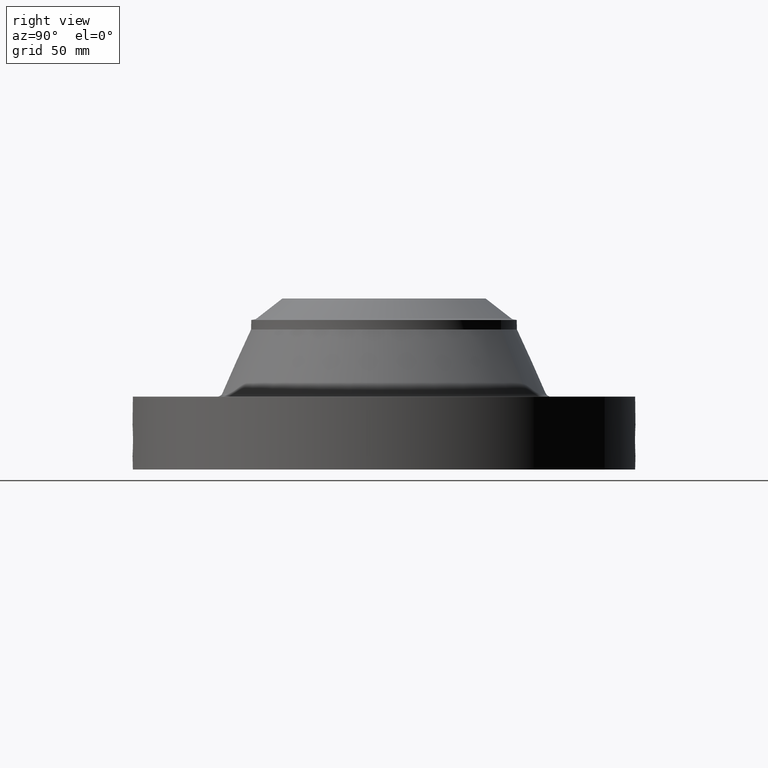
[diagram: clean part render]
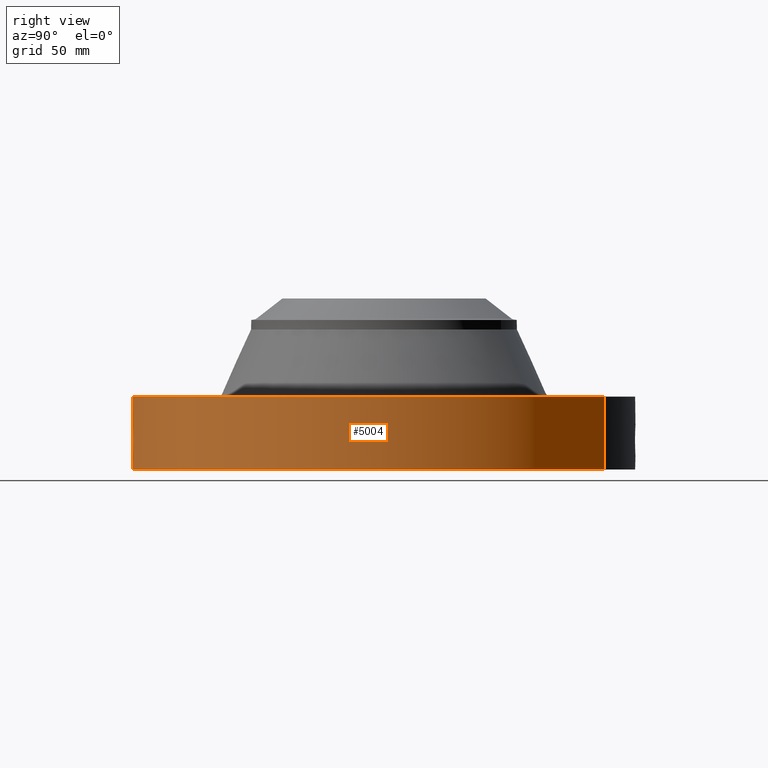
[diagram: same view with one face highlighted and labeled with its STEP entity id]
A machine part, right view. The second image highlights one B-rep face of the part: STEP entity #5004.
In plain terms, the highlighted cylindrical surface (partial cylindrical patch) has radius 158.75 mm, axis along (0, 0, -1).
Its self-contained STEP definition (entity closure, byte-faithful):
#3858=AXIS2_PLACEMENT_3D('Circle Axis2P3D',#3856,#3857,$) ;
#4294=AXIS2_PLACEMENT_3D('Circle Axis2P3D',#4292,#4293,$) ;
#4807=AXIS2_PLACEMENT_3D('Cylinder Axis2P3D',#4804,#4805,#4806) ;
#3851=CARTESIAN_POINT('Vertex',(-2.99640961629,-5.48489101184,5.59482469102E-016)) ;
#3853=CARTESIAN_POINT('Vertex',(2.99640961629,5.48489101184,5.59482469102E-016)) ;
#3856=CARTESIAN_POINT('Axis2P3D Location',(0.,0.,0.)) ;
#4292=CARTESIAN_POINT('Axis2P3D Location',(0.,0.,1.81300000001)) ;
#4296=CARTESIAN_POINT('Vertex',(2.99640961629,5.48489101184,1.81300000001)) ;
#4298=CARTESIAN_POINT('Vertex',(-2.99640961629,-5.48489101184,1.81300000001)) ;
#4804=CARTESIAN_POINT('Axis2P3D Location',(0.,0.,2.12650000001)) ;
#4809=CARTESIAN_POINT('Line Origine',(-2.99640961629,-5.48489101184,0.906500000004)) ;
#4814=CARTESIAN_POINT('Line Origine',(2.99640961629,5.48489101184,0.906500000004)) ;
#4919=CARTESIAN_POINT('Control Point',(0.0614644708686,-6.24969776222,1.09873436883)) ;
#4920=CARTESIAN_POINT('Control Point',(0.0414212323386,-6.24989488328,1.10227332161)) ;
#4921=CARTESIAN_POINT('Control Point',(0.0210708577172,-6.24999762512,1.10407720134)) ;
#4922=CARTESIAN_POINT('Control Point',(0.000716625008934,-6.24999995894,1.10411849791)) ;
#4923=CARTESIAN_POINT('Vertex',(0.0614464241207,-6.2496982013,1.09873785234)) ;
#4925=CARTESIAN_POINT('Vertex',(0.000716453227476,-6.24999995896,1.10411850827)) ;
#4929=CARTESIAN_POINT('Control Point',(0.0614463070102,-6.24969794083,1.09873724316)) ;
#4930=CARTESIAN_POINT('Control Point',(0.0996024776083,-6.24932279378,1.09347493394)) ;
#4931=CARTESIAN_POINT('Control Point',(0.136899408553,-6.24859399424,1.08129770183)) ;
#4932=CARTESIAN_POINT('Control Point',(0.171067775012,-6.2476584267,1.06316971548)) ;
#4933=CARTESIAN_POINT('Vertex',(0.171067775012,-6.2476584267,1.06316971548)) ;
#4937=CARTESIAN_POINT('Control Point',(0.0296245443516,-6.24992979054,0.341087372776)) ;
#4938=CARTESIAN_POINT('Control Point',(0.0850675259525,-6.2496669919,0.34817188858)) ;
#4939=CARTESIAN_POINT('Control Point',(0.138902304886,-6.24879701054,0.365715220558)) ;
#4940=CARTESIAN_POINT('Control Point',(0.188307427674,-6.24740321408,0.393150599945)) ;
#4941=CARTESIAN_POINT('Control Point',(0.276449759451,-6.24415684033,0.465463621794)) ;
#4942=CARTESIAN_POINT('Control Point',(0.333310201862,-6.24118109957,0.562324023158)) ;
#4943=CARTESIAN_POINT('Control Point',(0.353079980262,-6.24002779378,0.616112250492)) ;
#4944=CARTESIAN_POINT('Control Point',(0.369146432398,-6.23909137212,0.704601838589)) ;
#4945=CARTESIAN_POINT('Control Point',(0.36094586116,-6.23956933018,0.792529778609)) ;
#4946=CARTESIAN_POINT('Control Point',(0.354582003084,-6.23994118495,0.824632684936)) ;
#4947=CARTESIAN_POINT('Control Point',(0.330408067936,-6.24131002518,0.902893097256)) ;
#4948=CARTESIAN_POINT('Control Point',(0.286455101225,-6.24352532278,0.972422725428)) ;
#4949=CARTESIAN_POINT('Control Point',(0.253273546964,-6.245034888,1.00958792427)) ;
#4950=CARTESIAN_POINT('Control Point',(0.214209132441,-6.24647716877,1.04028111714)) ;
#4951=CARTESIAN_POINT('Control Point',(0.171067775012,-6.2476584267,1.06316971548)) ;
#4952=CARTESIAN_POINT('Vertex',(0.0296245443516,-6.24992979054,0.341087372776)) ;
#4956=CARTESIAN_POINT('Control Point',(0.0296245443516,-6.24992979054,0.341087372776)) ;
#4957=CARTESIAN_POINT('Control Point',(0.0197431577964,-6.24997662812,0.340860275533)) ;
#4958=CARTESIAN_POINT('Control Point',(0.00985869176829,-6.25000000433,0.340956168037)) ;
#4959=CARTESIAN_POINT('Control Point',(-2.72878352501E-006,-6.25000000002,0.341374667804)) ;
#4960=CARTESIAN_POINT('Vertex',(-2.72878353659E-006,-6.25000000002,0.341374667804)) ;
#4964=CARTESIAN_POINT('Control Point',(-0.193907788678,-6.24699125738,0.395063102329)) ;
#4965=CARTESIAN_POINT('Control Point',(-0.134702711631,-6.24882899416,0.362547233305)) ;
#4966=CARTESIAN_POINT('Control Point',(-0.0677969978514,-6.24999997043,0.344251727977)) ;
#4967=CARTESIAN_POINT('Control Point',(-2.72878354167E-006,-6.25000000002,0.341374667804)) ;
#4968=CARTESIAN_POINT('Vertex',(-0.193907788677,-6.24699125738,0.395063102329)) ;
#4972=CARTESIAN_POINT('Control Point',(-0.193907788677,-6.24699125738,0.395063102329)) ;
#4973=CARTESIAN_POINT('Control Point',(-0.223359296906,-6.246077077,0.411238090512)) ;
#4974=CARTESIAN_POINT('Control Point',(-0.251216865734,-6.24503864376,0.430307098811)) ;
#4975=CARTESIAN_POINT('Control Point',(-0.277075705104,-6.24392572688,0.452131253395)) ;
#4976=CARTESIAN_POINT('Control Point',(-0.344938074308,-6.24068148302,0.522693985709)) ;
#4977=CARTESIAN_POINT('Control Point',(-0.389128162853,-6.23793966725,0.611689973636)) ;
#4978=CARTESIAN_POINT('Control Point',(-0.405171661893,-6.23683264769,0.675656412571)) ;
#4979=CARTESIAN_POINT('Control Point',(-0.407320033861,-6.23674970228,0.789563725264)) ;
#4980=CARTESIAN_POINT('Control Point',(-0.368187373078,-6.23918287745,0.894141735233)) ;
#4981=CARTESIAN_POINT('Control Point',(-0.344342823248,-6.24059961408,0.935513503956)) ;
#4982=CARTESIAN_POINT('Control Point',(-0.274833312467,-6.244271631,1.02150779294)) ;
#4983=CARTESIAN_POINT('Control Point',(-0.180523313049,-6.24777195235,1.07763433917)) ;
#4984=CARTESIAN_POINT('Control Point',(-0.121387729792,-6.24927433208,1.09831328308)) ;
#4985=CARTESIAN_POINT('Control Point',(-0.0602306858705,-6.25000024927,1.10710706099)) ;
#4986=CARTESIAN_POINT('Control Point',(2.58579355281E-005,-6.24999999997,1.10415298435)) ;
#4987=CARTESIAN_POINT('Vertex',(2.58579355267E-005,-6.24999999997,1.10415298435)) ;
#4991=CARTESIAN_POINT('Control Point',(0.000716453216618,-6.24999995896,1.10411850825)) ;
#4992=CARTESIAN_POINT('Control Point',(0.00037117918982,-6.24999999854,1.10413605498)) ;
#4993=CARTESIAN_POINT('Control Point',(2.58579422042E-005,-6.24999999997,1.10415298434)) ;
#3857=DIRECTION('Axis2P3D Direction',(0.,0.,-0.0393700787402)) ;
#4293=DIRECTION('Axis2P3D Direction',(0.,0.,-0.0393700787402)) ;
#4805=DIRECTION('Axis2P3D Direction',(0.,0.,-0.0393700787402)) ;
#4806=DIRECTION('Axis2P3D XDirection',(0.0188750212049,0.0345504945626,0.)) ;
#4810=DIRECTION('Vector Direction',(0.,0.,-0.0393700787402)) ;
#4815=DIRECTION('Vector Direction',(0.,0.,-0.0393700787402)) ;
#4811=VECTOR('Line Direction',#4810,0.0393700787402) ;
#4816=VECTOR('Line Direction',#4815,0.0393700787402) ;
#4913=ORIENTED_EDGE('',*,*,#3860,.F.) ;
#4914=ORIENTED_EDGE('',*,*,#4818,.T.) ;
#4915=ORIENTED_EDGE('',*,*,#4300,.T.) ;
#4916=ORIENTED_EDGE('',*,*,#4813,.F.) ;
#4996=ORIENTED_EDGE('',*,*,#4927,.F.) ;
#4997=ORIENTED_EDGE('',*,*,#4935,.T.) ;
#4998=ORIENTED_EDGE('',*,*,#4954,.F.) ;
#4999=ORIENTED_EDGE('',*,*,#4962,.T.) ;
#5000=ORIENTED_EDGE('',*,*,#4970,.F.) ;
#5001=ORIENTED_EDGE('',*,*,#4989,.T.) ;
#5002=ORIENTED_EDGE('',*,*,#4994,.F.) ;
#5003=FACE_BOUND('',#4995,.T.) ;
#5004=ADVANCED_FACE('PartBody',(#4917,#5003),#4808,.T.) ;
#4918=B_SPLINE_CURVE_WITH_KNOTS('',3,(#4919,#4920,#4921,#4922),.UNSPECIFIED.,.F.,.U.,(4,4),(4.26351090835,6.52162971919),.UNSPECIFIED.) ;
#4928=B_SPLINE_CURVE_WITH_KNOTS('',3,(#4929,#4930,#4931,#4932),.UNSPECIFIED.,.F.,.U.,(4,4),(0.,4.32778387512),.UNSPECIFIED.) ;
#4936=B_SPLINE_CURVE_WITH_KNOTS('',5,(#4937,#4938,#4939,#4940,#4941,#4942,#4943,#4944,#4945,#4946,#4947,#4948,#4949,#4950,#4951),.UNSPECIFIED.,.F.,.U.,(6,3,3,3,6),(0.,9.71432545778,19.9376217538,25.963251457,35.0704312942),.UNSPECIFIED.) ;
#4955=B_SPLINE_CURVE_WITH_KNOTS('',3,(#4956,#4957,#4958,#4959),.UNSPECIFIED.,.F.,.U.,(4,4),(0.,1.03063376473),.UNSPECIFIED.) ;
#4963=B_SPLINE_CURVE_WITH_KNOTS('',3,(#4964,#4965,#4966,#4967),.UNSPECIFIED.,.F.,.U.,(4,4),(0.,7.0852938967),.UNSPECIFIED.) ;
#4971=B_SPLINE_CURVE_WITH_KNOTS('',5,(#4972,#4973,#4974,#4975,#4976,#4977,#4978,#4979,#4980,#4981,#4982,#4983,#4984,#4985,#4986),.UNSPECIFIED.,.F.,.U.,(6,3,3,3,6),(0.,5.87428769579,17.015473087,25.3762090714,36.6394055359),.UNSPECIFIED.) ;
#4990=B_SPLINE_CURVE_WITH_KNOTS('',2,(#4991,#4992,#4993),.UNSPECIFIED.,.F.,.U.,(3,3),(1.07159595185,1.09741503161),.UNSPECIFIED.) ;
#3859=CIRCLE('generated circle',#3858,6.25000000003) ;
#4295=CIRCLE('generated circle',#4294,6.25000000002) ;
#4808=CYLINDRICAL_SURFACE('generated cylinder',#4807,6.25000000003) ;
#3860=EDGE_CURVE('',#3854,#3852,#3859,.T.) ;
#4300=EDGE_CURVE('',#4297,#4299,#4295,.T.) ;
#4813=EDGE_CURVE('',#3852,#4299,#4812,.F.) ;
#4818=EDGE_CURVE('',#3854,#4297,#4817,.F.) ;
#4927=EDGE_CURVE('',#4924,#4926,#4918,.T.) ;
#4935=EDGE_CURVE('',#4924,#4934,#4928,.T.) ;
#4954=EDGE_CURVE('',#4953,#4934,#4936,.T.) ;
#4962=EDGE_CURVE('',#4953,#4961,#4955,.T.) ;
#4970=EDGE_CURVE('',#4969,#4961,#4963,.T.) ;
#4989=EDGE_CURVE('',#4969,#4988,#4971,.T.) ;
#4994=EDGE_CURVE('',#4926,#4988,#4990,.T.) ;
#4912=EDGE_LOOP('',(#4913,#4914,#4915,#4916)) ;
#4995=EDGE_LOOP('',(#4996,#4997,#4998,#4999,#5000,#5001,#5002)) ;
#4917=FACE_OUTER_BOUND('',#4912,.T.) ;
#4812=LINE('Line',#4809,#4811) ;
#4817=LINE('Line',#4814,#4816) ;
#3852=VERTEX_POINT('',#3851) ;
#3854=VERTEX_POINT('',#3853) ;
#4297=VERTEX_POINT('',#4296) ;
#4299=VERTEX_POINT('',#4298) ;
#4924=VERTEX_POINT('',#4923) ;
#4926=VERTEX_POINT('',#4925) ;
#4934=VERTEX_POINT('',#4933) ;
#4953=VERTEX_POINT('',#4952) ;
#4961=VERTEX_POINT('',#4960) ;
#4969=VERTEX_POINT('',#4968) ;
#4988=VERTEX_POINT('',#4987) ;